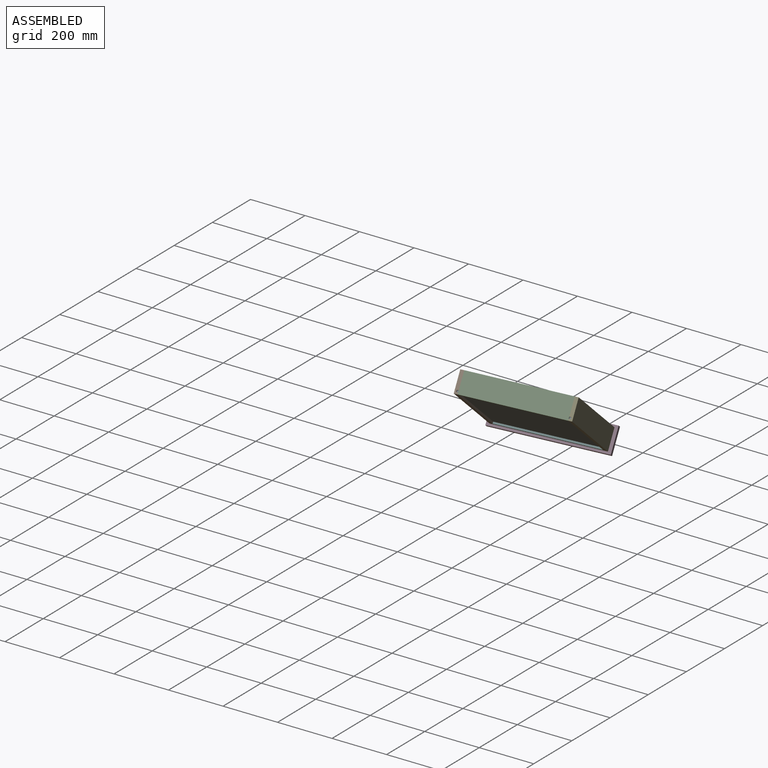
[diagram: assembled view]
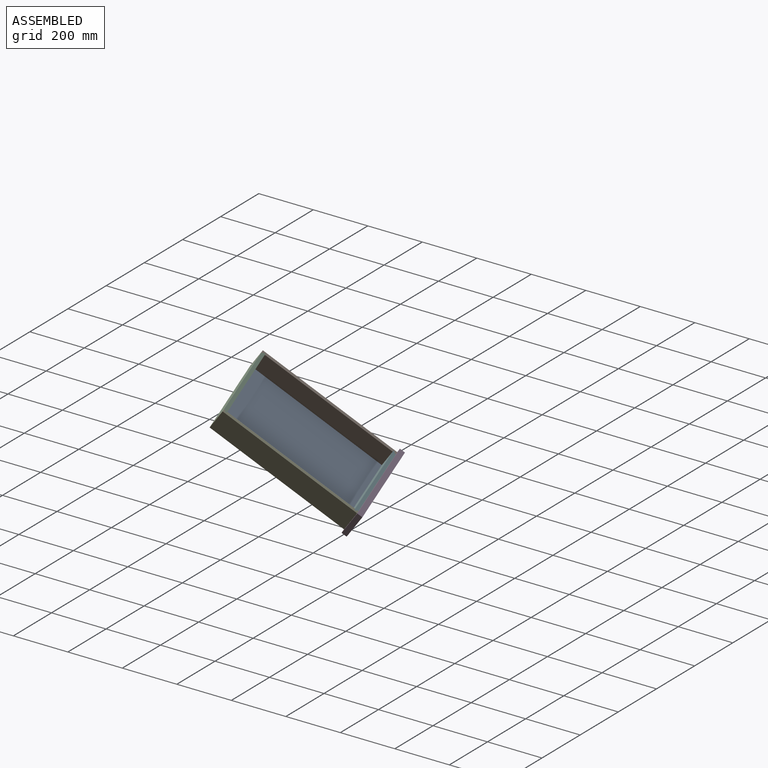
[diagram: assembled view, second angle]
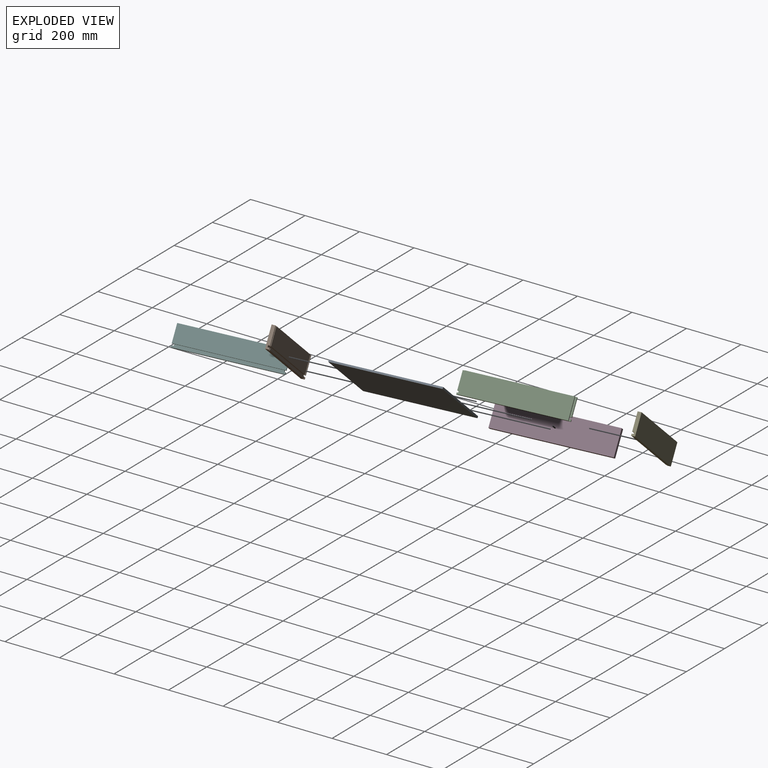
[diagram: exploded view]
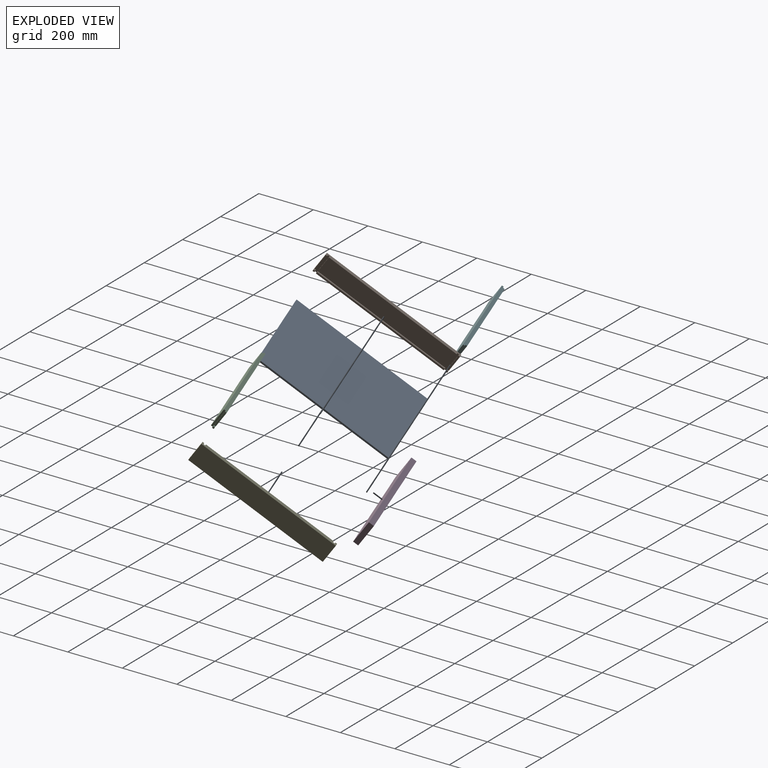
[diagram: exploded view, second angle]
ASSEMBLY  parts=6 mates=5
PART A: 6 faces, bbox 365.1x495.3x6.4 mm
  f0: plane 495.3x6.35mm, normal (-1,0,0), area 3145.2mm2, adj f1,f2,f3,f4
  f1: plane 495.3x365.13mm, normal (0,0,-1), area 180846.4mm2, adj f0,f2,f4,f5
  f2: plane 365.13x6.35mm, normal (0,1,0), area 2318.5mm2, adj f0,f1,f3,f5
  f3: plane 495.3x365.13mm, normal (0,0,1), area 180846.4mm2, adj f0,f2,f4,f5
  f4: plane 365.13x6.35mm, normal (0,-1,0), area 2318.5mm2, adj f0,f1,f3,f5
  f5: plane 495.3x6.35mm, normal (1,0,0), area 3145.2mm2, adj f1,f2,f3,f4
PART B: 26 faces, bbox 76.2x12.7x508 mm
  f0: plane 6.35x6.35mm, normal (0,1,0), area 40.3mm2, adj f8,f9,f10,f14
  f1: plane 482.6x6.35mm, normal (0,1,0), area 3064.5mm2, adj f11,f12,f13,f14
  f2: plane 6.35x6.35mm, normal (0,1,0), area 40.3mm2, adj f14,f15,f16,f17
  f3: plane 63.5x6.35mm, normal (0,1,0), area 403.2mm2, adj f6,f7,f8,f21
  f4: plane 508x76.2mm, normal (0,-1,0), area 38709.6mm2, adj f8,f14,f17,f21
  f5: plane 63.5x6.35mm, normal (0,1,0), area 403.2mm2, adj f17,f18,f19,f21
  f6: plane 63.5x6.35mm, normal (0,0,1), area 403.2mm2, adj f3,f7,f21,f22
  f7: plane 6.35x6.35mm, normal (1,0,0), area 40.3mm2, adj f3,f6,f8,f22
  f8: plane 76.2x12.7mm, normal (0,0,-1), area 927.4mm2, adj f0,f3,f4,f7,f9,f14,f21,f22
  f9: plane 6.35x6.35mm, normal (-1,0,0), area 40.3mm2, adj f0,f8,f10,f22
  f10: plane 6.35x6.35mm, normal (0,0,1), area 40.3mm2, adj f0,f9,f14,f22
  f11: plane 6.35x6.35mm, normal (0,0,-1), area 40.3mm2, adj f1,f12,f14,f22
  f12: plane 482.6x6.35mm, normal (-1,0,0), area 3064.5mm2, adj f1,f11,f13,f22
  f13: plane 6.35x6.35mm, normal (0,0,1), area 40.3mm2, adj f1,f12,f14,f22
  f14: plane 508x12.7mm, normal (1,0,0), area 6371mm2, adj f0,f1,f2,f4,f8,f10,f11,f13
  f15: plane 6.35x6.35mm, normal (0,0,-1), area 40.3mm2, adj f2,f14,f16,f22
  f16: plane 6.35x6.35mm, normal (-1,0,0), area 40.3mm2, adj f2,f15,f17,f22
  f17: plane 76.2x12.7mm, normal (0,0,1), area 927.4mm2, adj f2,f4,f5,f14,f16,f18,f21,f22
  f18: plane 6.35x6.35mm, normal (1,0,0), area 40.3mm2, adj f5,f17,f19,f22
  f19: plane 63.5x6.35mm, normal (0,0,-1), area 403.2mm2, adj f5,f18,f21,f22
  f20: plane 63.5x6.35mm, normal (0,0,1), area 403.2mm2, adj f21,f22,f23,f24
  f21: plane 508x12.7mm, normal (-1,0,0), area 6371mm2, adj f3,f4,f5,f6,f8,f17,f19,f20
  f22: plane 508x76.2mm, normal (0,1,0), area 4112.9mm2, adj f6,f7,f8,f9,f10,f11,f12,f13
  f23: plane 482.6x6.35mm, normal (1,0,0), area 3064.5mm2, adj f20,f22,f24,f25
  f24: plane 482.6x63.5mm, normal (0,1,0), area 30645.1mm2, adj f20,f21,f23,f25
  f25: plane 63.5x6.35mm, normal (0,0,-1), area 403.2mm2, adj f21,f22,f23,f24
PART C: 18 faces, bbox 76.2x12.7x365.1 mm
  f0: plane 365.13x6.35mm, normal (0,1,0), area 2318.5mm2, adj f1,f3,f4,f6
  f1: plane 6.35x6.35mm, normal (0,0,1), area 40.3mm2, adj f0,f2,f4,f6
  f2: plane 6.35x6.35mm, normal (0,-1,0), area 40.3mm2, adj f1,f4,f5,f6
  f3: plane 6.35x6.35mm, normal (0,0,-1), area 40.3mm2, adj f0,f4,f6,f7
  f4: plane 365.13x6.35mm, normal (-1,0,0), area 2318.5mm2, adj f0,f1,f2,f3,f7,f9
  f5: plane 76.2x6.35mm, normal (0,0,1), area 483.9mm2, adj f2,f6,f8,f9,f10,f14
  f6: plane 365.13x12.7mm, normal (1,0,0), area 4556.4mm2, adj f0,f1,f2,f3,f5,f7,f8,f15
  f7: plane 6.35x6.35mm, normal (0,-1,0), area 40.3mm2, adj f3,f4,f6,f15
  f8: plane 352.43x76.2mm, normal (0,-1,0), area 26854.8mm2, adj f5,f6,f14,f15
  f9: plane 352.43x6.35mm, normal (0,1,0), area 2237.9mm2, adj f4,f5,f15,f16
  f10: plane 63.5x6.35mm, normal (0,-1,0), area 403.2mm2, adj f5,f11,f14,f16
  f11: plane 63.5x6.35mm, normal (0,0,1), area 403.2mm2, adj f10,f12,f14,f16
  f12: plane 365.13x63.5mm, normal (0,1,0), area 23185.4mm2, adj f11,f13,f14,f16
  f13: plane 63.5x6.35mm, normal (0,0,-1), area 403.2mm2, adj f12,f14,f16,f17
  f14: plane 365.13x12.7mm, normal (-1,0,0), area 4556.4mm2, adj f5,f8,f10,f11,f12,f13,f15,f17
  f15: plane 76.2x6.35mm, normal (0,0,-1), area 483.9mm2, adj f6,f7,f8,f9,f14,f17
  f16: plane 365.13x6.35mm, normal (1,0,0), area 2318.5mm2, adj f9,f10,f11,f12,f13,f17
  f17: plane 63.5x6.35mm, normal (0,-1,0), area 403.2mm2, adj f13,f14,f15,f16
PART D: 6 faces, bbox 92.1x19.1x400.1 mm
  f0: plane 400.05x19.05mm, normal (-1,0,0), area 7621mm2, adj f1,f2,f3,f4
  f1: plane 92.08x19.05mm, normal (0,0,-1), area 1754mm2, adj f0,f2,f4,f5
  f2: plane 400.05x92.08mm, normal (0,1,0), area 36834.6mm2, adj f0,f1,f3,f5
  f3: plane 92.08x19.05mm, normal (0,0,1), area 1754mm2, adj f0,f2,f4,f5
  f4: plane 400.05x92.08mm, normal (0,-1,0), area 36834.6mm2, adj f0,f1,f3,f5
  f5: plane 400.05x19.05mm, normal (1,0,0), area 7621mm2, adj f1,f2,f3,f4
PART E: same geometry as B
PART F: same geometry as C
PLACE A rot(axis=(-0.9,0.01,0.44),39.3deg) t=(-211.1,108.96,212.77)mm
PLACE B rot(axis=(0.34,0.55,-0.76),92.1deg) t=(-212.58,155.4,265.69)mm
PLACE C rot(axis=(-0.43,0.89,-0.14),96.9deg) t=(-78.36,-229.55,547.04)mm
PLACE D rot(axis=(-0.15,-0.89,0.43),96.1deg) t=(148.45,226.97,149.35)mm
PLACE E rot(axis=(-0.72,0.57,0.41),151.8deg) t=(268.05,-139.51,519.24)mm
PLACE F rot(axis=(0.7,-0.11,-0.71),142.8deg) t=(133.84,245.44,237.88)mm
MATE fastened B.f8 <-> D.f4  axis (-0.28,0.77,-0.57) through (-224.71,151.87,266.93)mm
MATE fastened C.f5 <-> E.f0  axis (0.96,0.28,-0.1) through (274.32,-182.88,456.9)mm
MATE fastened E.f2 <-> F.f15  axis (-0.96,-0.28,0.1) through (130.44,210.12,168.97)mm
MATE fastened B.f2 <-> C.f15  axis (0.96,0.28,-0.1) through (-62.42,-280.98,491.29)mm
MATE fastened A.f0 <-> C.f3  axis (-0.96,-0.28,0.1) through (-70.81,-274.22,493.5)mm
